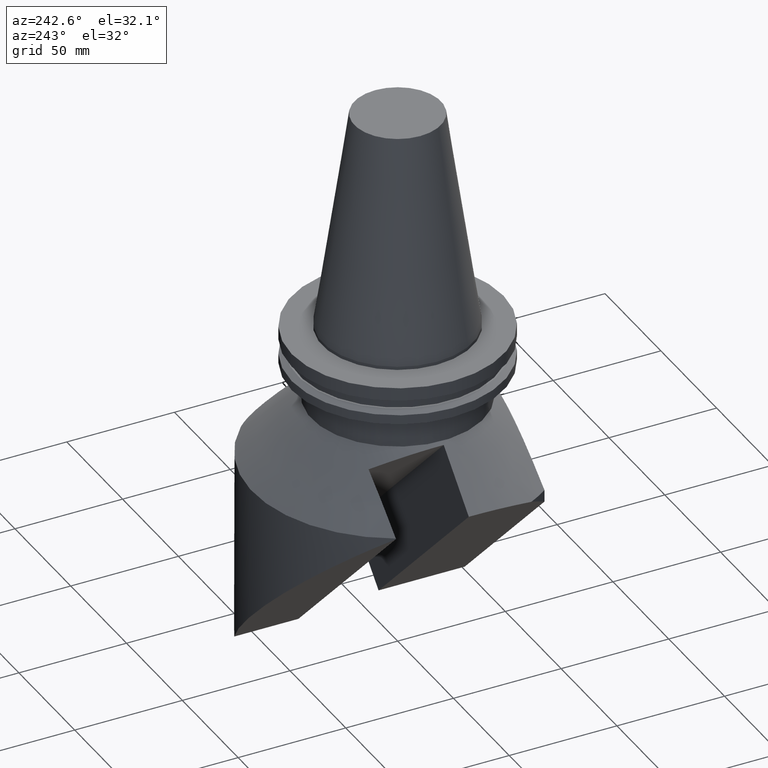
[diagram: clean part render]
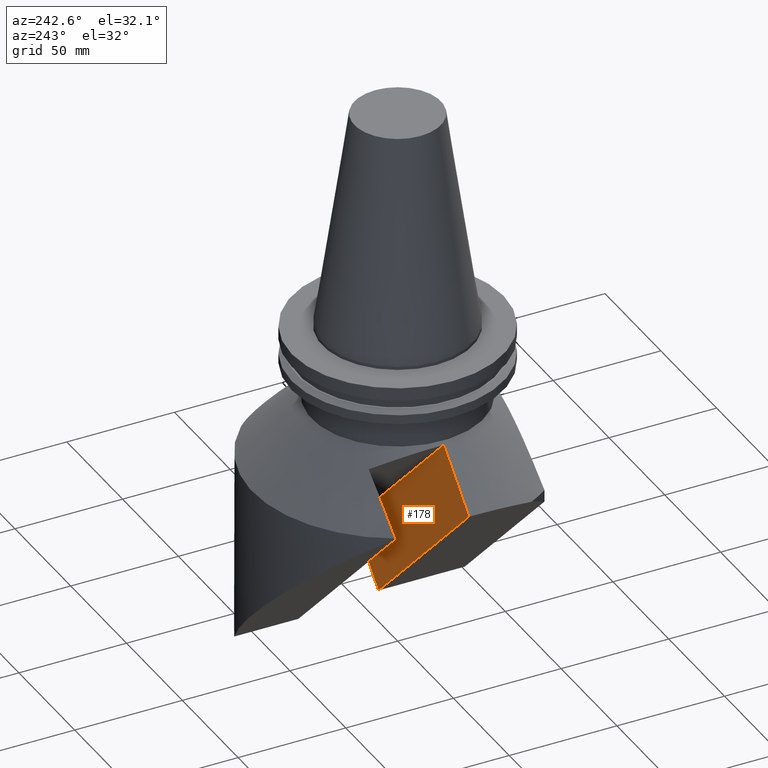
[diagram: same view with one face highlighted and labeled with its STEP entity id]
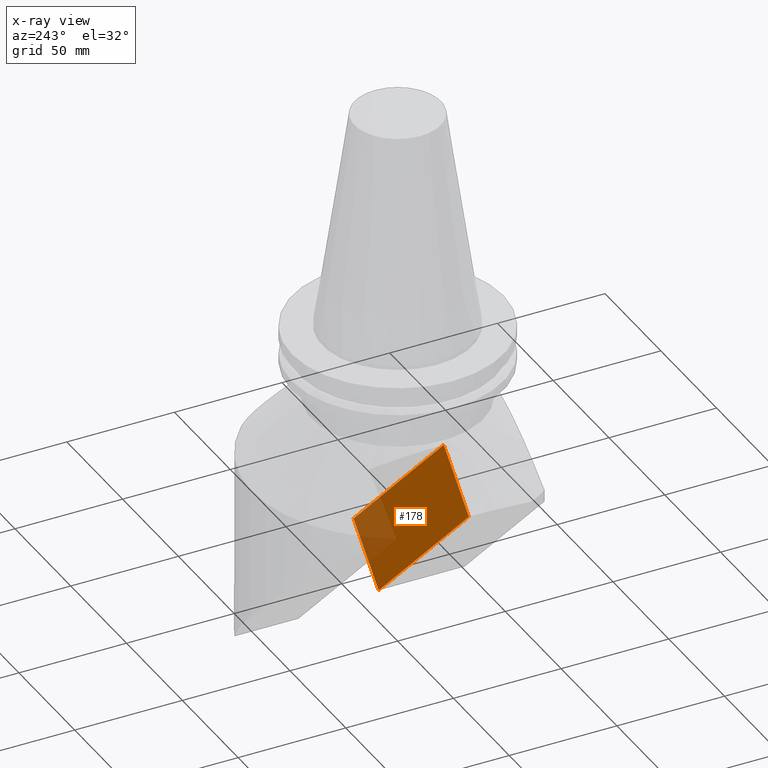
[diagram: x-ray of the same camera — body ghosted, the highlighted face saturated]
A machine part, auxiliary view. The second image highlights one B-rep face of the part: STEP entity #178.
The next image is the same camera in x-ray: the body ghosted, the highlighted face saturated — about 18% of this face is hidden behind the body in this view.
In plain terms, the highlighted planar face has unit normal (0, -1, -0).
Its self-contained STEP definition (entity closure, byte-faithful):
#133=EDGE_CURVE('Unnamed[1]',#365,#366,#367,.T.);
#166=EDGE_CURVE('Unnamed[1]',#342,#418,#419,.T.);
#178=ADVANCED_FACE('Unnamed[1]',(#436),#437,.F.);
#187=EDGE_CURVE('Unnamed[1]',#366,#342,#449,.T.);
#253=EDGE_CURVE('Unnamed[1]',#418,#365,#539,.T.);
#342=VERTEX_POINT('',#661);
#365=VERTEX_POINT('',#692);
#366=VERTEX_POINT('',#693);
#367=LINE('',#694,#695);
#418=VERTEX_POINT('',#773);
#419=LINE('',#774,#775);
#436=FACE_OUTER_BOUND('',#800,.T.);
#437=PLANE('',#801);
#449=LINE('',#817,#818);
#539=LINE('',#954,#955);
#661=CARTESIAN_POINT('',(39.5626244073863,1.82058232813556E-013,-117.77709487539));
#692=CARTESIAN_POINT('',(-63.732864376269,1.68427929798465E-014,-59.3828866970796));
#693=CARTESIAN_POINT('',(17.1119841047162,-3.87360595571758E-014,-140.227735178066));
#694=CARTESIAN_POINT('',(-10.9008899339428,-2.17897298895369E-013,-112.214861139406));
#695=VECTOR('',#1139,1.0);
#773=CARTESIAN_POINT('',(-41.2822240735965,-1.04459609606118E-012,-36.932246394407));
#774=CARTESIAN_POINT('',(59.9272997055599,4.91050303180405E-013,-138.141770173563));
#775=VECTOR('',#1190,1.0);
#800=EDGE_LOOP('',(#1201,#1202,#1203,#1204));
#801=AXIS2_PLACEMENT_3D('',#1205,#1206,#1207);
#817=CARTESIAN_POINT('',(31.6524539803817,-4.19646924461414E-014,-125.687265302397));
#818=VECTOR('',#1221,1.0);
#954=CARTESIAN_POINT('',(-53.75,-1.03066689038608E-012,-49.4000223208108));
#955=VECTOR('',#1329,1.0);
#1139=DIRECTION('',(0.70710678118654,1.07288913321817E-014,-0.707106781186555));
#1190=DIRECTION('',(-0.707106781186548,-1.07288913321817E-014,0.707106781186548));
#1201=ORIENTED_EDGE('',*,*,#253,.F.);
#1202=ORIENTED_EDGE('',*,*,#166,.F.);
#1203=ORIENTED_EDGE('',*,*,#187,.F.);
#1204=ORIENTED_EDGE('',*,*,#133,.F.);
#1205=CARTESIAN_POINT('',(-3.7946405910066,-1.10074578185755E-013,-119.321110482343));
#1206=DIRECTION('',(7.02786353785482E-015,-1.0,-8.14508009334372E-015));
#1207=DIRECTION('',(0.707106781186547,1.07288913321817E-014,-0.707106781186548));
#1221=DIRECTION('',(0.707106781186455,-7.89991402441489E-016,0.70710678118664));
#1329=DIRECTION('',(-0.707106781186536,7.89991402440261E-016,-0.707106781186559));